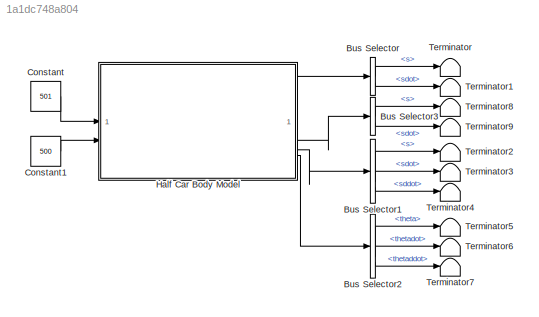
MODEL slx_1a1dc748a804
KIND model
CONFIG AbsTol = auto
CONFIG EnableMultiTasking = off
CONFIG FixedStep = auto
CONFIG MaxStep = auto
CONFIG MinStep = auto
CONFIG RelTol = 1e-3
CONFIG SampleTimeConstraint = Unconstrained
CONFIG SolverName = VariableStepAuto
CONFIG StartTime = 0.0
CONFIG StopTime = 10.0
BLOCK [BusSelector] Bus Selector
  OutputSignals = s,sdot
BLOCK [BusSelector] Bus Selector1
  OutputSignals = s,sdot,sddot
BLOCK [BusSelector] Bus Selector2
  OutputSignals = theta,thetadot,thetaddot
BLOCK [BusSelector] Bus Selector3
  OutputSignals = s,sdot
BLOCK [Constant] Constant
  Value = 501
BLOCK [Constant] Constant1
  Value = 500
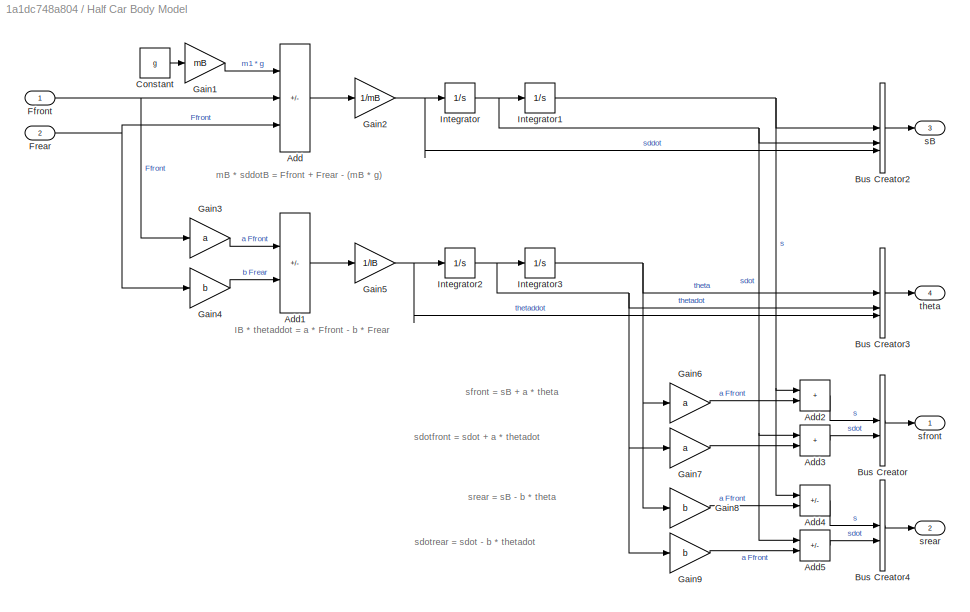
BLOCK [SubSystem] Half Car Body Model
  AttributesFormatString = mB = %<mB>\nIB = %<IB>\ng = %<g>\na = %<a>\nb = %<b>
BLOCK [Sum] Half Car Body Model/Add
  IconShape = rectangular
  Inputs = -++
BLOCK [Sum] Half Car Body Model/Add1
  IconShape = rectangular
  Inputs = +-
BLOCK [Sum] Half Car Body Model/Add2
  IconShape = rectangular
BLOCK [Sum] Half Car Body Model/Add3
  IconShape = rectangular
BLOCK [Sum] Half Car Body Model/Add4
  IconShape = rectangular
  Inputs = +-
BLOCK [Sum] Half Car Body Model/Add5
  IconShape = rectangular
  Inputs = +-
BLOCK [BusCreator] Half Car Body Model/Bus Creator
  DisplayOption = bar
  InheritFromInputs = on
  Inputs = 2
BLOCK [BusCreator] Half Car Body Model/Bus Creator2
  DisplayOption = bar
  InheritFromInputs = on
  Inputs = 3
BLOCK [BusCreator] Half Car Body Model/Bus Creator3
  DisplayOption = bar
  InheritFromInputs = on
  Inputs = 3
BLOCK [BusCreator] Half Car Body Model/Bus Creator4
  DisplayOption = bar
  InheritFromInputs = on
  Inputs = 2
BLOCK [Constant] Half Car Body Model/Constant
  Value = g
BLOCK [Inport] Half Car Body Model/Ffront
BLOCK [Inport] Half Car Body Model/Frear
  Port = 2
BLOCK [Gain] Half Car Body Model/Gain1
  Gain = mB
BLOCK [Gain] Half Car Body Model/Gain2
  Gain = 1/mB
BLOCK [Gain] Half Car Body Model/Gain3
  Gain = a
BLOCK [Gain] Half Car Body Model/Gain4
  Gain = b
BLOCK [Gain] Half Car Body Model/Gain5
  Gain = 1/IB
BLOCK [Gain] Half Car Body Model/Gain6
  Gain = a
BLOCK [Gain] Half Car Body Model/Gain7
  Gain = a
BLOCK [Gain] Half Car Body Model/Gain8
  Gain = b
BLOCK [Gain] Half Car Body Model/Gain9
  Gain = b
BLOCK [Integrator] Half Car Body Model/Integrator
BLOCK [Integrator] Half Car Body Model/Integrator1
BLOCK [Integrator] Half Car Body Model/Integrator2
BLOCK [Integrator] Half Car Body Model/Integrator3
BLOCK [Outport] Half Car Body Model/sB
  Port = 3
BLOCK [Outport] Half Car Body Model/sfront
BLOCK [Outport] Half Car Body Model/srear
  Port = 2
BLOCK [Outport] Half Car Body Model/theta
  Port = 4
BLOCK [Terminator] Terminator
BLOCK [Terminator] Terminator1
BLOCK [Terminator] Terminator2
BLOCK [Terminator] Terminator3
BLOCK [Terminator] Terminator4
BLOCK [Terminator] Terminator5
BLOCK [Terminator] Terminator6
BLOCK [Terminator] Terminator7
BLOCK [Terminator] Terminator8
BLOCK [Terminator] Terminator9
ANNOTATION Half Car Body Model: IB * thetaddot = a * Ffront - b * Frear
ANNOTATION Half Car Body Model: mB * sddotB = Ffront + Frear - (mB * g)
ANNOTATION Half Car Body Model: sdotfront = sdot + a * thetadot
ANNOTATION Half Car Body Model: sdotrear = sdot - b * thetadot
ANNOTATION Half Car Body Model: sfront = sB + a * theta
ANNOTATION Half Car Body Model: srear = sB - b * theta
LINE Bus Selector1:1 -> Terminator2:1
LINE Bus Selector1:2 -> Terminator3:1
LINE Bus Selector1:3 -> Terminator4:1
LINE Bus Selector2:1 -> Terminator5:1
LINE Bus Selector2:2 -> Terminator6:1
LINE Bus Selector2:3 -> Terminator7:1
LINE Bus Selector3:1 -> Terminator8:1
LINE Bus Selector3:2 -> Terminator9:1
LINE Bus Selector:1 -> Terminator:1
LINE Bus Selector:2 -> Terminator1:1
LINE Constant1:1 -> Half Car Body Model:2
LINE Constant:1 -> Half Car Body Model:1
LINE Half Car Body Model/Add1:1 -> Half Car Body Model/Gain5:1
LINE Half Car Body Model/Add2:1 -> Half Car Body Model/Bus Creator:1
LINE Half Car Body Model/Add3:1 -> Half Car Body Model/Bus Creator:2
LINE Half Car Body Model/Add4:1 -> Half Car Body Model/Bus Creator4:1
LINE Half Car Body Model/Add5:1 -> Half Car Body Model/Bus Creator4:2
LINE Half Car Body Model/Add:1 -> Half Car Body Model/Gain2:1
LINE Half Car Body Model/Bus Creator2:1 -> Half Car Body Model/sB:1
LINE Half Car Body Model/Bus Creator3:1 -> Half Car Body Model/theta:1
LINE Half Car Body Model/Bus Creator4:1 -> Half Car Body Model/srear:1
LINE Half Car Body Model/Bus Creator:1 -> Half Car Body Model/sfront:1
LINE Half Car Body Model/Constant:1 -> Half Car Body Model/Gain1:1
NET Half Car Body Model/Ffront:1 -> Half Car Body Model/Add:2, Half Car Body Model/Gain3:1
NET Half Car Body Model/Frear:1 -> Half Car Body Model/Add:3, Half Car Body Model/Gain4:1
LINE Half Car Body Model/Gain1:1 -> Half Car Body Model/Add:1
NET Half Car Body Model/Gain2:1 -> Half Car Body Model/Bus Creator2:3, Half Car Body Model/Integrator:1
LINE Half Car Body Model/Gain3:1 -> Half Car Body Model/Add1:1
LINE Half Car Body Model/Gain4:1 -> Half Car Body Model/Add1:2
NET Half Car Body Model/Gain5:1 -> Half Car Body Model/Bus Creator3:3, Half Car Body Model/Integrator2:1
LINE Half Car Body Model/Gain6:1 -> Half Car Body Model/Add2:2
LINE Half Car Body Model/Gain7:1 -> Half Car Body Model/Add3:2
LINE Half Car Body Model/Gain8:1 -> Half Car Body Model/Add4:2
LINE Half Car Body Model/Gain9:1 -> Half Car Body Model/Add5:2
NET Half Car Body Model/Integrator1:1 -> Half Car Body Model/Add2:1, Half Car Body Model/Add4:1, Half Car Body Model/Bus Creator2:1
NET Half Car Body Model/Integrator2:1 -> Half Car Body Model/Bus Creator3:2, Half Car Body Model/Gain7:1, Half Car Body Model/Gain9:1, Half Car Body Model/Integrator3:1
NET Half Car Body Model/Integrator3:1 -> Half Car Body Model/Bus Creator3:1, Half Car Body Model/Gain6:1, Half Car Body Model/Gain8:1
NET Half Car Body Model/Integrator:1 -> Half Car Body Model/Add3:1, Half Car Body Model/Add5:1, Half Car Body Model/Bus Creator2:2, Half Car Body Model/Integrator1:1
LINE Half Car Body Model:1 -> Bus Selector:1
LINE Half Car Body Model:2 -> Bus Selector3:1
LINE Half Car Body Model:3 -> Bus Selector1:1
LINE Half Car Body Model:4 -> Bus Selector2:1
note: NET lines group one-source signal fan-out (src -> all destinations, sorted); 1:1 wires keep LINE
